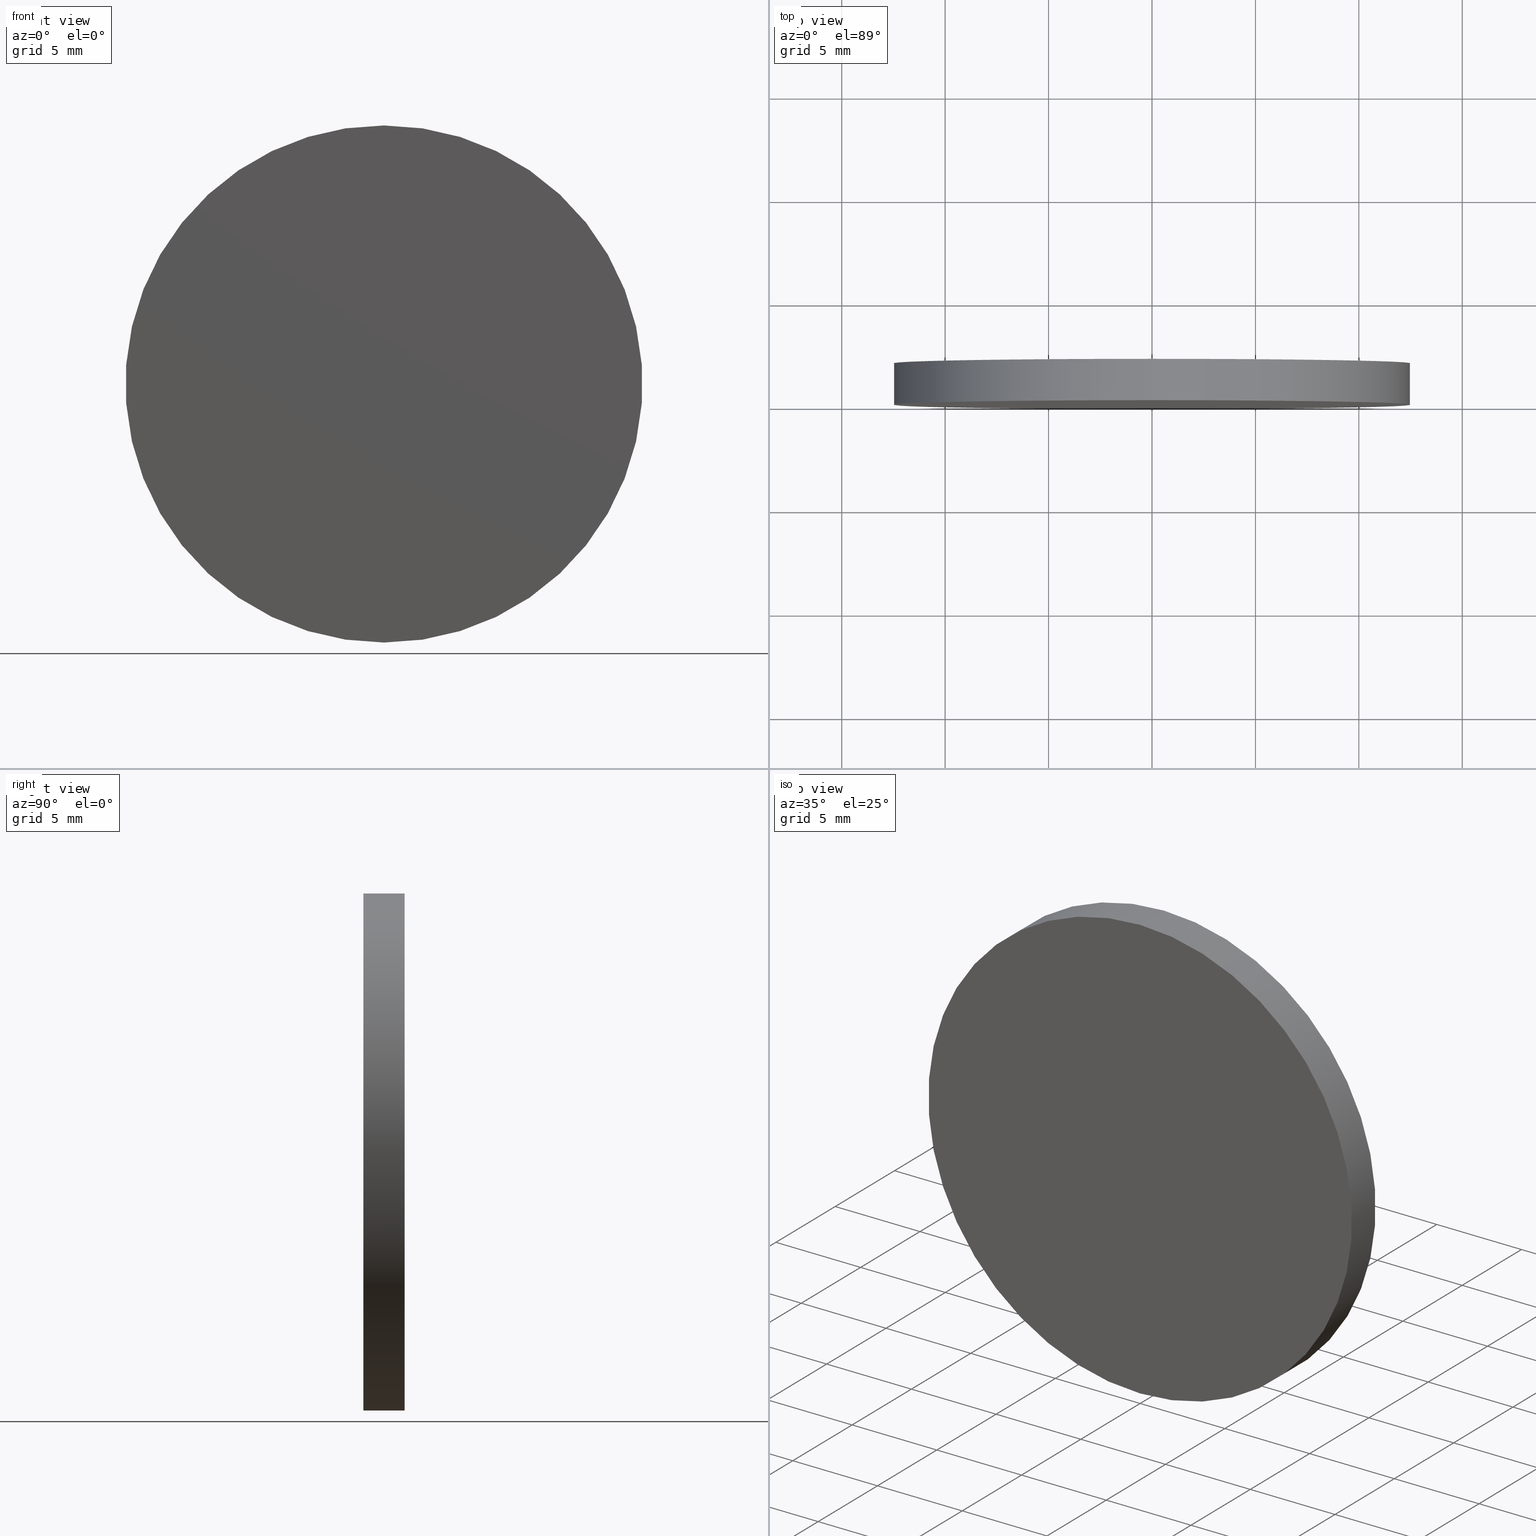
[diagram: canonical four-view strip — front | top / right | iso, engineering-drawing reading convention]
A machine part, canonical four-view strip (front | top / right | iso — engineering-drawing reading convention). The complete STEP part file that produces these views, byte-faithful:
ISO-10303-21;
HEADER;
FILE_DESCRIPTION (( 'STEP AP214' ),
    '1' );
FILE_NAME ('208529.STEP',
    '2019-07-24T07:23:18',
    ( 'user' ),
    ( '΢���й�' ),
    'SwSTEP 2.0',
    'SolidWorks 2016',
    '' );
FILE_SCHEMA (( 'AUTOMOTIVE_DESIGN' ));
ENDSEC;

DATA;
#1 = CIRCLE ( 'NONE', #101, 12.50000000000000000 ) ;
#2 = APPLICATION_PROTOCOL_DEFINITION ( 'draft international standard', 'automotive_design', 1998, #84 ) ;
#3 = FACE_OUTER_BOUND ( 'NONE', #91, .T. ) ;
#4 =( LENGTH_UNIT ( ) NAMED_UNIT ( * ) SI_UNIT ( .MILLI., .METRE. ) );
#5 = PLANE ( 'NONE',  #44 ) ;
#6 = CYLINDRICAL_SURFACE ( 'NONE', #109, 12.50000000000000000 ) ;
#7 =( NAMED_UNIT ( * ) PLANE_ANGLE_UNIT ( ) SI_UNIT ( $, .RADIAN. ) );
#8 = CARTESIAN_POINT ( 'NONE',  ( 1.530808498934191500E-015, 2.000000000000000000, 12.50000000000000000 ) ) ;
#9 = PRODUCT_DEFINITION_CONTEXT ( 'detailed design', #84, 'design' ) ;
#10 = CIRCLE ( 'NONE', #123, 12.50000000000000000 ) ;
#11 = ADVANCED_BREP_SHAPE_REPRESENTATION ( '208529', ( #56, #112 ), #54 ) ;
#12 = ORIENTED_EDGE ( 'NONE', *, *, #21, .F. ) ;
#13 = CIRCLE ( 'NONE', #42, 12.50000000000000000 ) ;
#14 = PRODUCT_CONTEXT ( 'NONE', #72, 'mechanical' ) ;
#15 = CARTESIAN_POINT ( 'NONE',  ( 0.0000000000000000000, 2.000000000000000000, -12.50000000000000000 ) ) ;
#16 = SURFACE_STYLE_USAGE ( .BOTH. , #99 ) ;
#17 = DIRECTION ( 'NONE',  ( 0.0000000000000000000, 1.000000000000000000, 0.0000000000000000000 ) ) ;
#18 = ORIENTED_EDGE ( 'NONE', *, *, #110, .F. ) ;
#19 = ADVANCED_FACE ( 'NONE', ( #117 ), #64, .T. ) ;
#20 = COLOUR_RGB ( '',1.000000000000000000, 1.000000000000000000, 1.000000000000000000 ) ;
#21 = EDGE_CURVE ( 'NONE', #103, #135, #13, .T. ) ;
#22 = SURFACE_STYLE_FILL_AREA ( #136 ) ;
#23 = ORIENTED_EDGE ( 'NONE', *, *, #30, .T. ) ;
#24 = DIRECTION ( 'NONE',  ( 0.0000000000000000000, 0.0000000000000000000, 1.000000000000000000 ) ) ;
#25 =( NAMED_UNIT ( * ) PLANE_ANGLE_UNIT ( ) SI_UNIT ( $, .RADIAN. ) );
#26 = DIRECTION ( 'NONE',  ( 0.0000000000000000000, 1.000000000000000000, 0.0000000000000000000 ) ) ;
#27 = CARTESIAN_POINT ( 'NONE',  ( 0.0000000000000000000, 0.0000000000000000000, -12.50000000000000000 ) ) ;
#28 = FILL_AREA_STYLE ('',( #75 ) ) ;
#29 = CLOSED_SHELL ( 'NONE', ( #78, #66, #19, #120 ) ) ;
#30 = EDGE_CURVE ( 'NONE', #135, #103, #139, .T. ) ;
#31 = EDGE_CURVE ( 'NONE', #135, #122, #68, .T. ) ;
#32 = PRESENTATION_STYLE_ASSIGNMENT (( #124 ) ) ;
#33 = FACE_OUTER_BOUND ( 'NONE', #41, .T. ) ;
#34 = UNCERTAINTY_MEASURE_WITH_UNIT (LENGTH_MEASURE( 1.000000000000000100E-005 ), #4, 'distance_accuracy_value', 'NONE');
#35 =( NAMED_UNIT ( * ) SI_UNIT ( $, .STERADIAN. ) SOLID_ANGLE_UNIT ( ) );
#36 = DIRECTION ( 'NONE',  ( 0.0000000000000000000, 0.0000000000000000000, 1.000000000000000000 ) ) ;
#37 = DIRECTION ( 'NONE',  ( 0.0000000000000000000, 1.000000000000000000, 0.0000000000000000000 ) ) ;
#38 = FACE_OUTER_BOUND ( 'NONE', #133, .T. ) ;
#39 = DIRECTION ( 'NONE',  ( -0.0000000000000000000, -1.000000000000000000, -0.0000000000000000000 ) ) ;
#40 = DIRECTION ( 'NONE',  ( 0.0000000000000000000, 0.0000000000000000000, -1.000000000000000000 ) ) ;
#41 = EDGE_LOOP ( 'NONE', ( #43, #111, #90, #18 ) ) ;
#42 = AXIS2_PLACEMENT_3D ( 'NONE', #100, #17, #88 ) ;
#43 = ORIENTED_EDGE ( 'NONE', *, *, #30, .F. ) ;
#44 = AXIS2_PLACEMENT_3D ( 'NONE', #60, #26, #97 ) ;
#45 = ORIENTED_EDGE ( 'NONE', *, *, #110, .T. ) ;
#46 =( LENGTH_UNIT ( ) NAMED_UNIT ( * ) SI_UNIT ( .MILLI., .METRE. ) );
#47 = CARTESIAN_POINT ( 'NONE',  ( 0.0000000000000000000, 0.0000000000000000000, 0.0000000000000000000 ) ) ;
#48 = CARTESIAN_POINT ( 'NONE',  ( 1.530808498934191500E-015, 0.0000000000000000000, 12.50000000000000000 ) ) ;
#49 = CARTESIAN_POINT ( 'NONE',  ( 0.0000000000000000000, 2.000000000000000000, 0.0000000000000000000 ) ) ;
#50 = DIRECTION ( 'NONE',  ( 0.0000000000000000000, 0.0000000000000000000, 1.000000000000000000 ) ) ;
#51 = CARTESIAN_POINT ( 'NONE',  ( 0.0000000000000000000, 2.000000000000000000, 0.0000000000000000000 ) ) ;
#52 = VECTOR ( 'NONE', #106, 1000.000000000000000 ) ;
#53 = AXIS2_PLACEMENT_3D ( 'NONE', #51, #130, #138 ) ;
#54 =( GEOMETRIC_REPRESENTATION_CONTEXT ( 3 ) GLOBAL_UNCERTAINTY_ASSIGNED_CONTEXT ( ( #34 ) ) GLOBAL_UNIT_ASSIGNED_CONTEXT ( ( #4, #25, #96 ) ) REPRESENTATION_CONTEXT ( 'NONE', 'WORKASPACE' ) );
#55 = ORIENTED_EDGE ( 'NONE', *, *, #21, .T. ) ;
#56 = MANIFOLD_SOLID_BREP ( '͹̨-����1', #29 ) ;
#57 = AXIS2_PLACEMENT_3D ( 'NONE', #63, #129, #50 ) ;
#58 = SURFACE_SIDE_STYLE ('',( #22 ) ) ;
#59 = CARTESIAN_POINT ( 'NONE',  ( 1.530808498934191500E-015, 2.000000000000000000, 12.50000000000000000 ) ) ;
#60 = CARTESIAN_POINT ( 'NONE',  ( 0.0000000000000000000, 0.0000000000000000000, 0.0000000000000000000 ) ) ;
#61 = CARTESIAN_POINT ( 'NONE',  ( 0.0000000000000000000, 2.000000000000000000, 0.0000000000000000000 ) ) ;
#62 = UNCERTAINTY_MEASURE_WITH_UNIT (LENGTH_MEASURE( 1.000000000000000100E-005 ), #87, 'distance_accuracy_value', 'NONE');
#63 = CARTESIAN_POINT ( 'NONE',  ( 0.0000000000000000000, 2.000000000000000000, 0.0000000000000000000 ) ) ;
#64 = PLANE ( 'NONE',  #53 ) ;
#65 = VECTOR ( 'NONE', #73, 1000.000000000000000 ) ;
#66 = ADVANCED_FACE ( 'NONE', ( #3 ), #6, .T. ) ;
#67 = STYLED_ITEM ( 'NONE', ( #102 ), #56 ) ;
#68 = LINE ( 'NONE', #8, #52 ) ;
#69 = STYLED_ITEM ( 'NONE', ( #32 ), #11 ) ;
#70 = PRODUCT_DEFINITION_SHAPE ( 'NONE', 'NONE',  #121 ) ;
#71 = SURFACE_STYLE_FILL_AREA ( #28 ) ;
#72 = APPLICATION_CONTEXT ( 'automotive_design' ) ;
#73 = DIRECTION ( 'NONE',  ( -0.0000000000000000000, -1.000000000000000000, -0.0000000000000000000 ) ) ;
#74 =( NAMED_UNIT ( * ) SI_UNIT ( $, .STERADIAN. ) SOLID_ANGLE_UNIT ( ) );
#75 = FILL_AREA_STYLE_COLOUR ( '', #20 ) ;
#76 = ORIENTED_EDGE ( 'NONE', *, *, #119, .F. ) ;
#77 = PRESENTATION_LAYER_ASSIGNMENT (  '', '', ( #67 ) ) ;
#78 = ADVANCED_FACE ( 'NONE', ( #33 ), #98, .T. ) ;
#79 = PRESENTATION_LAYER_ASSIGNMENT (  '', '', ( #69 ) ) ;
#80 = SHAPE_DEFINITION_REPRESENTATION ( #70, #11 ) ;
#81 = VERTEX_POINT ( 'NONE', #27 ) ;
#82 = COLOUR_RGB ( '',1.000000000000000000, 1.000000000000000000, 1.000000000000000000 ) ;
#83 = MECHANICAL_DESIGN_GEOMETRIC_PRESENTATION_REPRESENTATION (  '', ( #67 ), #92 ) ;
#84 = APPLICATION_CONTEXT ( 'automotive_design' ) ;
#85 = APPLICATION_PROTOCOL_DEFINITION ( 'draft international standard', 'automotive_design', 1998, #72 ) ;
#86 = CARTESIAN_POINT ( 'NONE',  ( 0.0000000000000000000, 2.000000000000000000, -12.50000000000000000 ) ) ;
#87 =( LENGTH_UNIT ( ) NAMED_UNIT ( * ) SI_UNIT ( .MILLI., .METRE. ) );
#88 = DIRECTION ( 'NONE',  ( 0.0000000000000000000, 0.0000000000000000000, 1.000000000000000000 ) ) ;
#89 = MECHANICAL_DESIGN_GEOMETRIC_PRESENTATION_REPRESENTATION (  '', ( #69 ), #94 ) ;
#90 = ORIENTED_EDGE ( 'NONE', *, *, #126, .T. ) ;
#91 = EDGE_LOOP ( 'NONE', ( #104, #12, #45, #132 ) ) ;
#92 =( GEOMETRIC_REPRESENTATION_CONTEXT ( 3 ) GLOBAL_UNCERTAINTY_ASSIGNED_CONTEXT ( ( #62 ) ) GLOBAL_UNIT_ASSIGNED_CONTEXT ( ( #87, #7, #74 ) ) REPRESENTATION_CONTEXT ( 'NONE', 'WORKASPACE' ) );
#93 = LINE ( 'NONE', #86, #65 ) ;
#94 =( GEOMETRIC_REPRESENTATION_CONTEXT ( 3 ) GLOBAL_UNCERTAINTY_ASSIGNED_CONTEXT ( ( #128 ) ) GLOBAL_UNIT_ASSIGNED_CONTEXT ( ( #46, #113, #35 ) ) REPRESENTATION_CONTEXT ( 'NONE', 'WORKASPACE' ) );
#95 = DIRECTION ( 'NONE',  ( 1.000000000000000000, 0.0000000000000000000, 0.0000000000000000000 ) ) ;
#96 =( NAMED_UNIT ( * ) SI_UNIT ( $, .STERADIAN. ) SOLID_ANGLE_UNIT ( ) );
#97 = DIRECTION ( 'NONE',  ( 0.0000000000000000000, -0.0000000000000000000, 1.000000000000000000 ) ) ;
#98 = CYLINDRICAL_SURFACE ( 'NONE', #118, 12.50000000000000000 ) ;
#99 = SURFACE_SIDE_STYLE ('',( #71 ) ) ;
#100 = CARTESIAN_POINT ( 'NONE',  ( 0.0000000000000000000, 2.000000000000000000, 0.0000000000000000000 ) ) ;
#101 = AXIS2_PLACEMENT_3D ( 'NONE', #115, #37, #105 ) ;
#102 = PRESENTATION_STYLE_ASSIGNMENT (( #16 ) ) ;
#103 = VERTEX_POINT ( 'NONE', #15 ) ;
#104 = ORIENTED_EDGE ( 'NONE', *, *, #31, .F. ) ;
#105 = DIRECTION ( 'NONE',  ( 0.0000000000000000000, 0.0000000000000000000, 1.000000000000000000 ) ) ;
#106 = DIRECTION ( 'NONE',  ( -0.0000000000000000000, -1.000000000000000000, -0.0000000000000000000 ) ) ;
#107 = EDGE_LOOP ( 'NONE', ( #55, #23 ) ) ;
#108 = ORIENTED_EDGE ( 'NONE', *, *, #126, .F. ) ;
#109 = AXIS2_PLACEMENT_3D ( 'NONE', #61, #116, #40 ) ;
#110 = EDGE_CURVE ( 'NONE', #103, #81, #93, .T. ) ;
#111 = ORIENTED_EDGE ( 'NONE', *, *, #31, .T. ) ;
#112 = AXIS2_PLACEMENT_3D ( 'NONE', #137, #24, #95 ) ;
#113 =( NAMED_UNIT ( * ) PLANE_ANGLE_UNIT ( ) SI_UNIT ( $, .RADIAN. ) );
#114 = DIRECTION ( 'NONE',  ( 0.0000000000000000000, 1.000000000000000000, 0.0000000000000000000 ) ) ;
#115 = CARTESIAN_POINT ( 'NONE',  ( 0.0000000000000000000, 0.0000000000000000000, 0.0000000000000000000 ) ) ;
#116 = DIRECTION ( 'NONE',  ( -0.0000000000000000000, -1.000000000000000000, -0.0000000000000000000 ) ) ;
#117 = FACE_OUTER_BOUND ( 'NONE', #107, .T. ) ;
#118 = AXIS2_PLACEMENT_3D ( 'NONE', #49, #39, #127 ) ;
#119 = EDGE_CURVE ( 'NONE', #81, #122, #1, .T. ) ;
#120 = ADVANCED_FACE ( 'NONE', ( #38 ), #5, .F. ) ;
#121 = PRODUCT_DEFINITION ( 'δ֪', '', #131, #9 ) ;
#122 = VERTEX_POINT ( 'NONE', #48 ) ;
#123 = AXIS2_PLACEMENT_3D ( 'NONE', #47, #114, #36 ) ;
#124 = SURFACE_STYLE_USAGE ( .BOTH. , #58 ) ;
#125 = FILL_AREA_STYLE_COLOUR ( '', #82 ) ;
#126 = EDGE_CURVE ( 'NONE', #122, #81, #10, .T. ) ;
#127 = DIRECTION ( 'NONE',  ( 0.0000000000000000000, 0.0000000000000000000, -1.000000000000000000 ) ) ;
#128 = UNCERTAINTY_MEASURE_WITH_UNIT (LENGTH_MEASURE( 1.000000000000000100E-005 ), #46, 'distance_accuracy_value', 'NONE');
#129 = DIRECTION ( 'NONE',  ( 0.0000000000000000000, 1.000000000000000000, 0.0000000000000000000 ) ) ;
#130 = DIRECTION ( 'NONE',  ( 0.0000000000000000000, 1.000000000000000000, 0.0000000000000000000 ) ) ;
#131 = PRODUCT_DEFINITION_FORMATION_WITH_SPECIFIED_SOURCE ( '�κ�', '', #140, .NOT_KNOWN. ) ;
#132 = ORIENTED_EDGE ( 'NONE', *, *, #119, .T. ) ;
#133 = EDGE_LOOP ( 'NONE', ( #76, #108 ) ) ;
#134 = PRODUCT_RELATED_PRODUCT_CATEGORY ( 'part', '', ( #140 ) ) ;
#135 = VERTEX_POINT ( 'NONE', #59 ) ;
#136 = FILL_AREA_STYLE ('',( #125 ) ) ;
#137 = CARTESIAN_POINT ( 'NONE',  ( 0.0000000000000000000, 0.0000000000000000000, 0.0000000000000000000 ) ) ;
#138 = DIRECTION ( 'NONE',  ( 0.0000000000000000000, -0.0000000000000000000, 1.000000000000000000 ) ) ;
#139 = CIRCLE ( 'NONE', #57, 12.50000000000000000 ) ;
#140 = PRODUCT ( '208529', '208529', '', ( #14 ) ) ;
ENDSEC;
END-ISO-10303-21;
